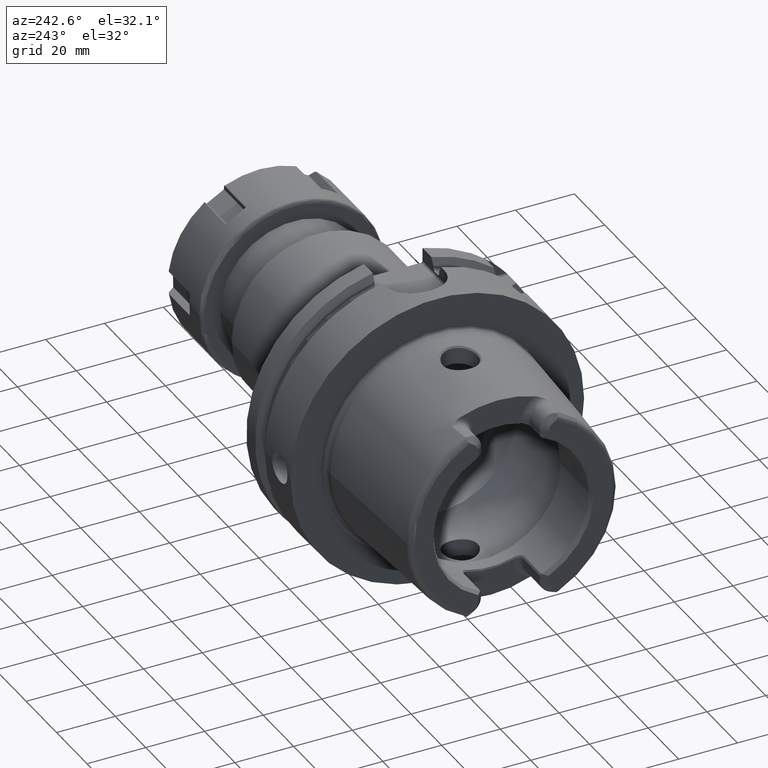
[diagram: clean part render]
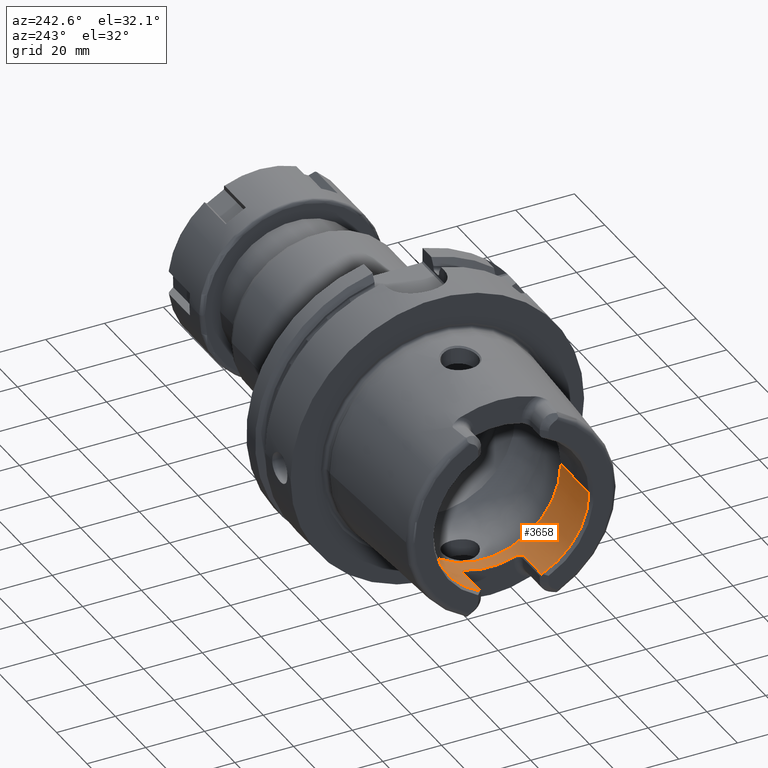
[diagram: same view with one face highlighted and labeled with its STEP entity id]
A machine part, auxiliary view. The second image highlights one B-rep face of the part: STEP entity #3658.
In plain terms, the highlighted cylindrical surface (partial cylindrical patch) has radius 26.5 mm, axis along (1, 0, 0).
Its self-contained STEP definition (entity closure, byte-faithful):
#152=CARTESIAN_POINT('',(-4.85E1,1.051E1,-2.432673220965E1));
#172=CARTESIAN_POINT('',(-4.85E1,0.E0,0.E0));
#173=DIRECTION('',(-1.E0,0.E0,0.E0));
#174=DIRECTION('',(0.E0,1.E0,0.E0));
#175=AXIS2_PLACEMENT_3D('',#172,#173,#174);
#180=CARTESIAN_POINT('',(-4.85E1,-1.051E1,-2.432673220965E1));
#182=CARTESIAN_POINT('',(-4.85E1,0.E0,0.E0));
#183=DIRECTION('',(-1.E0,0.E0,0.E0));
#184=DIRECTION('',(0.E0,-3.966037735849E-1,-9.179898947038E-1));
#185=AXIS2_PLACEMENT_3D('',#182,#183,#184);
#454=CARTESIAN_POINT('',(-4.85E1,-1.051E1,-2.432673220965E1));
#455=CARTESIAN_POINT('',(-4.846009940760E1,-1.047009940760E1,
-2.434397066250E1));
#456=CARTESIAN_POINT('',(-4.842017594144E1,-1.043017594144E1,
-2.436110250799E1));
#457=CARTESIAN_POINT('',(-4.838022966775E1,-1.039022966775E1,
-2.437812805470E1));
#459=DIRECTION('',(1.E0,0.E0,0.E0));
#460=VECTOR('',#459,1.138022966775E1);
#461=CARTESIAN_POINT('',(-4.838022966775E1,-1.039022966775E1,
-2.437812805470E1));
#462=LINE('',#461,#460);
#463=CARTESIAN_POINT('',(-3.471132486541E1,-8.01E0,-2.526044140549E1));
#464=CARTESIAN_POINT('',(-3.470878365387E1,-8.120563234659E0,
-2.522538218006E1));
#465=CARTESIAN_POINT('',(-3.471906599640E1,-8.340498761004E0,
-2.515406323082E1));
#466=CARTESIAN_POINT('',(-3.478267622202E1,-8.672586520945E0,
-2.504149237512E1));
#467=CARTESIAN_POINT('',(-3.489268945815E1,-8.989467647906E0,
-2.492938353432E1));
#468=CARTESIAN_POINT('',(-3.504052322957E1,-9.277750297862E0,
-2.482340953473E1));
#469=CARTESIAN_POINT('',(-3.522199090026E1,-9.537479373862E0,
-2.472468297045E1));
#470=CARTESIAN_POINT('',(-3.543924040038E1,-9.773195748090E0,
-2.463237051390E1));
#471=CARTESIAN_POINT('',(-3.569196362013E1,-9.980705213956E0,
-2.454892857931E1));
#472=CARTESIAN_POINT('',(-3.598453186629E1,-1.015759575719E1,
-2.447617541727E1));
#473=CARTESIAN_POINT('',(-3.632143240491E1,-1.029570459018E1,
-2.441829554687E1));
#474=CARTESIAN_POINT('',(-3.667918985616E1,-1.037618705974E1,
-2.438412368561E1));
#475=CARTESIAN_POINT('',(-3.689481839480E1,-1.039022966775E1,
-2.437812805470E1));
#476=CARTESIAN_POINT('',(-3.7E1,-1.039022966775E1,-2.437812805470E1));
#478=CARTESIAN_POINT('',(-3.471132486541E1,8.01E0,-2.526044140549E1));
#479=CARTESIAN_POINT('',(-3.471132486541E1,7.271271578955E0,-2.549468967366E1));
#480=CARTESIAN_POINT('',(-3.471132486546E1,5.773250992792E0,-2.589833317849E1));
#481=CARTESIAN_POINT('',(-3.471132486544E1,3.481810319461E0,-2.630458298809E1));
#482=CARTESIAN_POINT('',(-3.471132486544E1,1.163586982585E0,-2.650849211583E1));
#483=CARTESIAN_POINT('',(-3.471132486544E1,-1.163586982585E0,
-2.650849211583E1));
#484=CARTESIAN_POINT('',(-3.471132486544E1,-3.481810319461E0,
-2.630458298809E1));
#485=CARTESIAN_POINT('',(-3.471132486546E1,-5.773250992791E0,
-2.589833317849E1));
#486=CARTESIAN_POINT('',(-3.471132486541E1,-7.271271578958E0,
-2.549468967366E1));
#487=CARTESIAN_POINT('',(-3.471132486541E1,-8.01E0,-2.526044140549E1));
#489=CARTESIAN_POINT('',(-3.7E1,1.039022966775E1,-2.437812805470E1));
#490=CARTESIAN_POINT('',(-3.689375760304E1,1.039022966775E1,-2.437812805470E1));
#491=CARTESIAN_POINT('',(-3.667635124759E1,1.037592175927E1,-2.438423721529E1));
#492=CARTESIAN_POINT('',(-3.631623052643E1,1.029415408513E1,-2.441895189414E1));
#493=CARTESIAN_POINT('',(-3.597947032639E1,1.015497495082E1,-2.447726388108E1));
#494=CARTESIAN_POINT('',(-3.568903934051E1,9.978495762119E0,-2.454982411868E1));
#495=CARTESIAN_POINT('',(-3.543805179144E1,9.771970406757E0,-2.463285308238E1));
#496=CARTESIAN_POINT('',(-3.522178538203E1,9.537157318169E0,-2.472480442904E1));
#497=CARTESIAN_POINT('',(-3.504048499348E1,9.277715471543E0,-2.482342368645E1));
#498=CARTESIAN_POINT('',(-3.489237648633E1,8.988811706632E0,-2.492962282131E1));
#499=CARTESIAN_POINT('',(-3.478230284625E1,8.671343229943E0,-2.504192722240E1));
#500=CARTESIAN_POINT('',(-3.471884880625E1,8.338547582645E0,-2.515470883480E1));
#501=CARTESIAN_POINT('',(-3.470880260289E1,8.119738798873E0,-2.522564360584E1));
#502=CARTESIAN_POINT('',(-3.471132486541E1,8.01E0,-2.526044140549E1));
#504=DIRECTION('',(1.E0,0.E0,0.E0));
#505=VECTOR('',#504,1.138022966775E1);
#506=CARTESIAN_POINT('',(-4.838022966775E1,1.039022966775E1,-2.437812805470E1));
#507=LINE('',#506,#505);
#508=CARTESIAN_POINT('',(-4.838022966775E1,1.039022966775E1,-2.437812805470E1));
#509=CARTESIAN_POINT('',(-4.842017594144E1,1.043017594144E1,-2.436110250799E1));
#510=CARTESIAN_POINT('',(-4.846009940760E1,1.047009940760E1,-2.434397066250E1));
#511=CARTESIAN_POINT('',(-4.85E1,1.051E1,-2.432673220965E1));
#513=DIRECTION('',(-1.E0,0.E0,0.E0));
#514=VECTOR('',#513,1.849662432703E1);
#515=CARTESIAN_POINT('',(-3.000337567297E1,2.65E1,0.E0));
#516=LINE('',#515,#514);
#517=CARTESIAN_POINT('',(-3.000337567297E1,0.E0,0.E0));
#518=DIRECTION('',(-1.E0,0.E0,0.E0));
#519=DIRECTION('',(0.E0,1.E0,0.E0));
#520=AXIS2_PLACEMENT_3D('',#517,#518,#519);
#522=DIRECTION('',(-1.E0,0.E0,0.E0));
#523=VECTOR('',#522,1.849662432703E1);
#524=CARTESIAN_POINT('',(-3.000337567297E1,-2.65E1,0.E0));
#525=LINE('',#524,#523);
#2807=CARTESIAN_POINT('',(-3.000337567297E1,2.65E1,0.E0));
#2808=VERTEX_POINT('',#2807);
#2809=CARTESIAN_POINT('',(-4.85E1,2.65E1,0.E0));
#2810=VERTEX_POINT('',#2809);
#2819=CARTESIAN_POINT('',(-3.000337567297E1,-2.65E1,0.E0));
#2820=VERTEX_POINT('',#2819);
#2821=CARTESIAN_POINT('',(-4.85E1,-2.65E1,0.E0));
#2822=VERTEX_POINT('',#2821);
#2932=CARTESIAN_POINT('',(-3.7E1,-1.039022966775E1,-2.437812805470E1));
#2933=VERTEX_POINT('',#2932);
#2934=CARTESIAN_POINT('',(-3.471132486541E1,-8.01E0,-2.526044140549E1));
#2935=VERTEX_POINT('',#2934);
#2936=CARTESIAN_POINT('',(-3.7E1,1.039022966775E1,-2.437812805470E1));
#2937=VERTEX_POINT('',#2936);
#2938=CARTESIAN_POINT('',(-3.471132486541E1,8.01E0,-2.526044140549E1));
#2939=VERTEX_POINT('',#2938);
#2956=CARTESIAN_POINT('',(-4.838022966775E1,1.039022966775E1,
-2.437812805470E1));
#2957=VERTEX_POINT('',#2956);
#2958=VERTEX_POINT('',#152);
#2975=CARTESIAN_POINT('',(-4.838022966775E1,-1.039022966775E1,
-2.437812805470E1));
#2976=VERTEX_POINT('',#2975);
#2977=VERTEX_POINT('',#180);
#3631=CARTESIAN_POINT('',(-5.3125E1,0.E0,0.E0));
#3632=DIRECTION('',(1.E0,0.E0,0.E0));
#3633=DIRECTION('',(0.E0,-1.E0,0.E0));
#3634=AXIS2_PLACEMENT_3D('',#3631,#3632,#3633);
#3635=CYLINDRICAL_SURFACE('',#3634,2.65E1);
#3637=ORIENTED_EDGE('',*,*,#3636,.T.);
#3639=ORIENTED_EDGE('',*,*,#3638,.T.);
#3641=ORIENTED_EDGE('',*,*,#3640,.F.);
#3643=ORIENTED_EDGE('',*,*,#3642,.F.);
#3645=ORIENTED_EDGE('',*,*,#3644,.F.);
#3646=ORIENTED_EDGE('',*,*,#3623,.F.);
#3647=ORIENTED_EDGE('',*,*,#3355,.T.);
#3648=ORIENTED_EDGE('',*,*,#3377,.F.);
#3650=ORIENTED_EDGE('',*,*,#3649,.F.);
#3652=ORIENTED_EDGE('',*,*,#3651,.T.);
#3654=ORIENTED_EDGE('',*,*,#3653,.T.);
#3655=ORIENTED_EDGE('',*,*,#3389,.F.);
#3656=EDGE_LOOP('',(#3637,#3639,#3641,#3643,#3645,#3646,#3647,#3648,#3650,#3652,
#3654,#3655));
#3657=FACE_OUTER_BOUND('',#3656,.F.);
#3658=ADVANCED_FACE('',(#3657),#3635,.F.);
#176=CIRCLE('',#175,2.65E1);
#186=CIRCLE('',#185,2.65E1);
#458=B_SPLINE_CURVE_WITH_KNOTS('',3,(#454,#455,#456,#457),.UNSPECIFIED.,.F.,.F.,
(4,4),(0.E0,1.E0),.UNSPECIFIED.);
#477=B_SPLINE_CURVE_WITH_KNOTS('',3,(#463,#464,#465,#466,#467,#468,#469,#470,
#471,#472,#473,#474,#475,#476),.UNSPECIFIED.,.F.,.F.,(4,1,1,1,1,1,1,1,1,1,1,4),(
0.E0,9.090909090909E-2,1.818181818182E-1,2.727272727273E-1,3.636363636364E-1,
4.545454545455E-1,5.454545454545E-1,6.363636363636E-1,7.272727272727E-1,
8.181818181818E-1,9.090909090909E-1,1.E0),.UNSPECIFIED.);
#488=B_SPLINE_CURVE_WITH_KNOTS('',3,(#478,#479,#480,#481,#482,#483,#484,#485,
#486,#487),.UNSPECIFIED.,.F.,.F.,(4,1,1,1,1,1,1,4),(0.E0,1.428571428571E-1,
2.857142857143E-1,4.285714285714E-1,5.714285714286E-1,7.142857142857E-1,
8.571428571429E-1,1.E0),.UNSPECIFIED.);
#503=B_SPLINE_CURVE_WITH_KNOTS('',3,(#489,#490,#491,#492,#493,#494,#495,#496,
#497,#498,#499,#500,#501,#502),.UNSPECIFIED.,.F.,.F.,(4,1,1,1,1,1,1,1,1,1,1,4),(
0.E0,9.090909090909E-2,1.818181818182E-1,2.727272727273E-1,3.636363636364E-1,
4.545454545455E-1,5.454545454545E-1,6.363636363636E-1,7.272727272727E-1,
8.181818181818E-1,9.090909090909E-1,1.E0),.UNSPECIFIED.);
#512=B_SPLINE_CURVE_WITH_KNOTS('',3,(#508,#509,#510,#511),.UNSPECIFIED.,.F.,.F.,
(4,4),(0.E0,1.E0),.UNSPECIFIED.);
#521=CIRCLE('',#520,2.65E1);
#3355=EDGE_CURVE('',#2957,#2958,#512,.T.);
#3377=EDGE_CURVE('',#2810,#2958,#176,.T.);
#3389=EDGE_CURVE('',#2977,#2822,#186,.T.);
#3623=EDGE_CURVE('',#2957,#2937,#507,.T.);
#3636=EDGE_CURVE('',#2977,#2976,#458,.T.);
#3638=EDGE_CURVE('',#2976,#2933,#462,.T.);
#3640=EDGE_CURVE('',#2935,#2933,#477,.T.);
#3642=EDGE_CURVE('',#2939,#2935,#488,.T.);
#3644=EDGE_CURVE('',#2937,#2939,#503,.T.);
#3649=EDGE_CURVE('',#2808,#2810,#516,.T.);
#3651=EDGE_CURVE('',#2808,#2820,#521,.T.);
#3653=EDGE_CURVE('',#2820,#2822,#525,.T.);